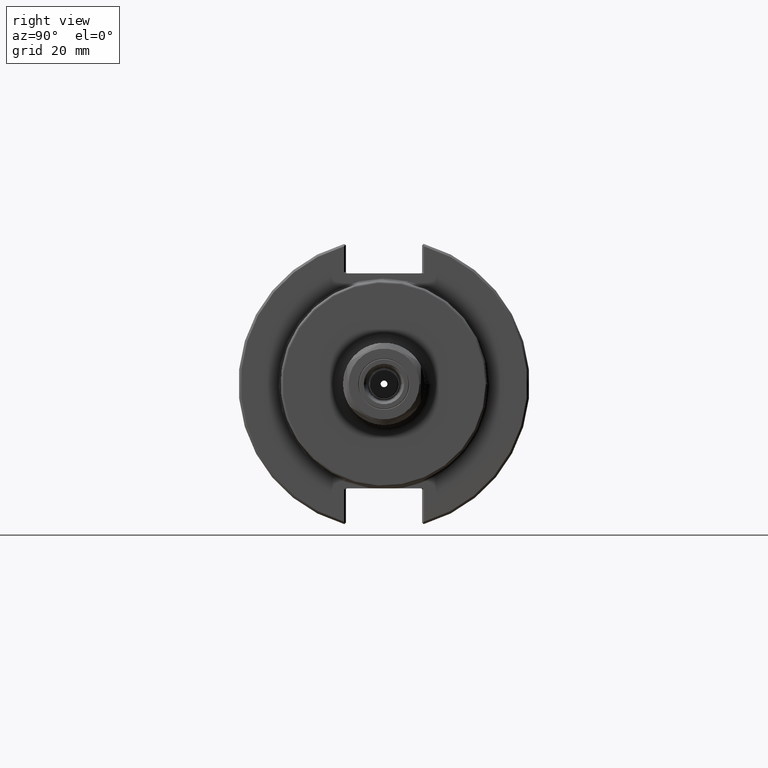
[diagram: clean part render]
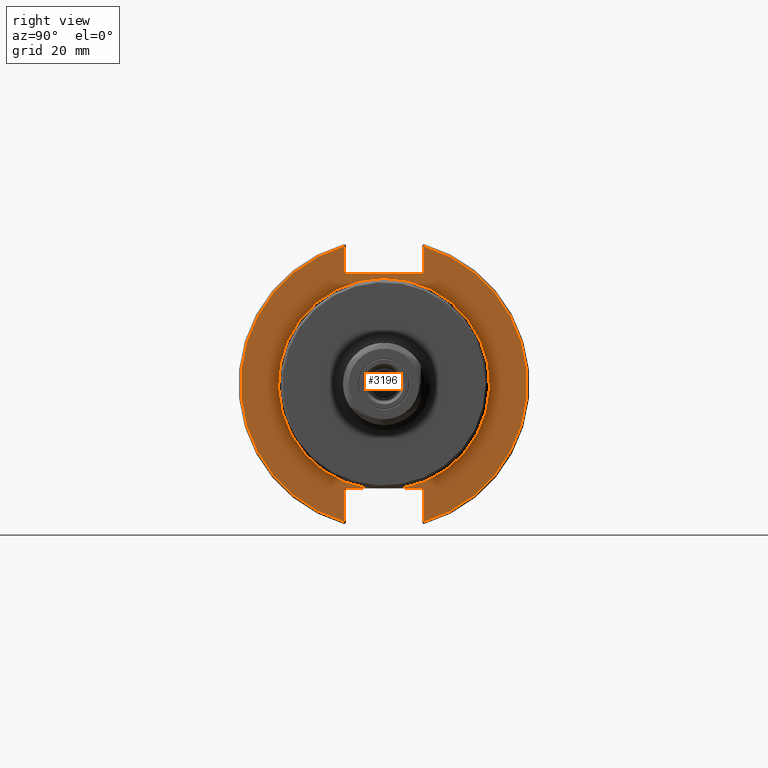
[diagram: same view with one face highlighted and labeled with its STEP entity id]
A machine part, right view. The second image highlights one B-rep face of the part: STEP entity #3196.
In plain terms, the highlighted planar face has unit normal (1, 0, 0).
Its self-contained STEP definition (entity closure, byte-faithful):
#124=CARTESIAN_POINT('',(0.75,0.217901353827829,-1.388));
#125=VERTEX_POINT('',#124);
#126=CARTESIAN_POINT('',(0.75,-0.217901353827829,-1.388));
#127=VERTEX_POINT('',#126);
#142=CARTESIAN_POINT('',(0.75,0.0,0.0));
#143=DIRECTION('',(1.0,0.0,0.0));
#144=DIRECTION('',(0.0,-1.0,0.0));
#145=AXIS2_PLACEMENT_3D('',#142,#143,#144);
#146=CIRCLE('',#145,1.405);
#147=EDGE_CURVE('',#125,#127,#146,.T.);
#2220=CARTESIAN_POINT('',(0.75,-0.532499999999821,1.492000000000001));
#2221=VERTEX_POINT('',#2220);
#2228=CARTESIAN_POINT('',(0.75,-0.504215728752359,1.472000000000001));
#2229=VERTEX_POINT('',#2228);
#2230=CARTESIAN_POINT('',(0.75,-0.504215728752359,1.492000000000001));
#2231=DIRECTION('',(1.0,0.0,0.0));
#2232=DIRECTION('',(0.0,-1.0,0.0));
#2233=AXIS2_PLACEMENT_3D('',#2230,#2231,#2232);
#2234=ELLIPSE('',#2233,0.028284271247462,0.02);
#2235=EDGE_CURVE('',#2221,#2229,#2234,.T.);
#2327=CARTESIAN_POINT('',(0.75,-0.532499999999821,1.831665908401472));
#2328=VERTEX_POINT('',#2327);
#2335=CARTESIAN_POINT('',(0.75,-0.532499999999821,1.831665908401472));
#2336=DIRECTION('',(0.0,0.0,-1.0));
#2337=VECTOR('',#2336,0.339665908401471);
#2338=LINE('',#2335,#2337);
#2339=EDGE_CURVE('',#2328,#2221,#2338,.T.);
#2374=CARTESIAN_POINT('',(0.75,0.532500000000284,-1.408));
#2375=VERTEX_POINT('',#2374);
#2376=CARTESIAN_POINT('',(0.75,0.504215728752823,-1.388));
#2377=VERTEX_POINT('',#2376);
#2378=CARTESIAN_POINT('',(0.75,0.504215728752823,-1.408));
#2379=DIRECTION('',(1.0,0.0,0.0));
#2380=DIRECTION('',(0.0,1.0,0.0));
#2381=AXIS2_PLACEMENT_3D('',#2378,#2379,#2380);
#2382=ELLIPSE('',#2381,0.028284271247462,0.02);
#2383=EDGE_CURVE('',#2375,#2377,#2382,.T.);
#2481=CARTESIAN_POINT('',(0.75,0.532500000000284,-1.831665908401337));
#2482=VERTEX_POINT('',#2481);
#2489=CARTESIAN_POINT('',(0.75,0.532500000000284,-1.831665908401337));
#2490=DIRECTION('',(0.0,0.0,1.0));
#2491=VECTOR('',#2490,0.423665908401337);
#2492=LINE('',#2489,#2491);
#2493=EDGE_CURVE('',#2482,#2375,#2492,.T.);
#2600=CARTESIAN_POINT('',(0.75,-0.504215728752254,-1.388));
#2601=VERTEX_POINT('',#2600);
#2608=CARTESIAN_POINT('',(0.75,-0.532499999999716,-1.408));
#2609=VERTEX_POINT('',#2608);
#2610=CARTESIAN_POINT('',(0.75,-0.504215728752254,-1.408));
#2611=DIRECTION('',(1.0,0.0,0.0));
#2612=DIRECTION('',(0.0,-1.0,0.0));
#2613=AXIS2_PLACEMENT_3D('',#2610,#2611,#2612);
#2614=ELLIPSE('',#2613,0.028284271247462,0.02);
#2615=EDGE_CURVE('',#2601,#2609,#2614,.T.);
#2665=CARTESIAN_POINT('',(0.75,-0.532499999999716,-1.831665908401503));
#2666=VERTEX_POINT('',#2665);
#2667=CARTESIAN_POINT('',(0.75,-0.532499999999716,-1.408));
#2668=DIRECTION('',(0.0,0.0,-1.0));
#2669=VECTOR('',#2668,0.423665908401503);
#2670=LINE('',#2667,#2669);
#2671=EDGE_CURVE('',#2609,#2666,#2670,.T.);
#2761=CARTESIAN_POINT('',(0.75,0.504215728752717,1.472000000000001));
#2762=VERTEX_POINT('',#2761);
#2769=CARTESIAN_POINT('',(0.75,0.532500000000179,1.492000000000001));
#2770=VERTEX_POINT('',#2769);
#2771=CARTESIAN_POINT('',(0.75,0.504215728752717,1.492000000000001));
#2772=DIRECTION('',(1.0,0.0,0.0));
#2773=DIRECTION('',(0.0,1.0,0.0));
#2774=AXIS2_PLACEMENT_3D('',#2771,#2772,#2773);
#2775=ELLIPSE('',#2774,0.028284271247462,0.02);
#2776=EDGE_CURVE('',#2762,#2770,#2775,.T.);
#2819=CARTESIAN_POINT('',(0.75,0.532500000000179,1.831665908401368));
#2820=VERTEX_POINT('',#2819);
#2821=CARTESIAN_POINT('',(0.75,0.532500000000179,1.492000000000001));
#2822=DIRECTION('',(0.0,0.0,1.0));
#2823=VECTOR('',#2822,0.339665908401367);
#2824=LINE('',#2821,#2823);
#2825=EDGE_CURVE('',#2770,#2820,#2824,.T.);
#3005=CARTESIAN_POINT('',(0.75,0.504215728752717,1.472000000000001));
#3006=DIRECTION('',(0.0,-1.0,0.0));
#3007=VECTOR('',#3006,1.008431457505076);
#3008=LINE('',#3005,#3007);
#3009=EDGE_CURVE('',#2762,#2229,#3008,.T.);
#3125=CARTESIAN_POINT('',(0.75,0.0,0.0));
#3126=DIRECTION('',(-1.0,0.0,0.0));
#3127=DIRECTION('',(0.0,-1.0,0.0));
#3128=AXIS2_PLACEMENT_3D('',#3125,#3126,#3127);
#3129=CIRCLE('',#3128,1.9075);
#3130=EDGE_CURVE('',#2666,#2328,#3129,.T.);
#3159=CARTESIAN_POINT('',(0.75,1.65625,0.0));
#3160=DIRECTION('',(1.0,0.0,0.0));
#3161=DIRECTION('',(0.0,0.0,-1.0));
#3162=AXIS2_PLACEMENT_3D('',#3159,#3160,#3161);
#3163=PLANE('',#3162);
#3164=ORIENTED_EDGE('',*,*,#147,.F.);
#3165=CARTESIAN_POINT('',(0.75,0.217901353827828,-1.388));
#3166=DIRECTION('',(0.0,1.0,0.0));
#3167=VECTOR('',#3166,0.286314374924994);
#3168=LINE('',#3165,#3167);
#3169=EDGE_CURVE('',#125,#2377,#3168,.T.);
#3170=ORIENTED_EDGE('',*,*,#3169,.T.);
#3171=ORIENTED_EDGE('',*,*,#2383,.F.);
#3172=ORIENTED_EDGE('',*,*,#2493,.F.);
#3173=CARTESIAN_POINT('',(0.75,0.0,0.0));
#3174=DIRECTION('',(-1.0,0.0,0.0));
#3175=DIRECTION('',(0.0,1.0,0.0));
#3176=AXIS2_PLACEMENT_3D('',#3173,#3174,#3175);
#3177=CIRCLE('',#3176,1.9075);
#3178=EDGE_CURVE('',#2820,#2482,#3177,.T.);
#3179=ORIENTED_EDGE('',*,*,#3178,.F.);
#3180=ORIENTED_EDGE('',*,*,#2825,.F.);
#3181=ORIENTED_EDGE('',*,*,#2776,.F.);
#3182=ORIENTED_EDGE('',*,*,#3009,.T.);
#3183=ORIENTED_EDGE('',*,*,#2235,.F.);
#3184=ORIENTED_EDGE('',*,*,#2339,.F.);
#3185=ORIENTED_EDGE('',*,*,#3130,.F.);
#3186=ORIENTED_EDGE('',*,*,#2671,.F.);
#3187=ORIENTED_EDGE('',*,*,#2615,.F.);
#3188=CARTESIAN_POINT('',(0.75,-0.504215728752254,-1.388));
#3189=DIRECTION('',(0.0,1.0,0.0));
#3190=VECTOR('',#3189,0.286314374924425);
#3191=LINE('',#3188,#3190);
#3192=EDGE_CURVE('',#2601,#127,#3191,.T.);
#3193=ORIENTED_EDGE('',*,*,#3192,.T.);
#3194=EDGE_LOOP('',(#3164,#3170,#3171,#3172,#3179,#3180,#3181,#3182,#3183,#3184,#3185,#3186,#3187,#3193));
#3195=FACE_OUTER_BOUND('',#3194,.T.);
#3196=ADVANCED_FACE('',(#3195),#3163,.T.);